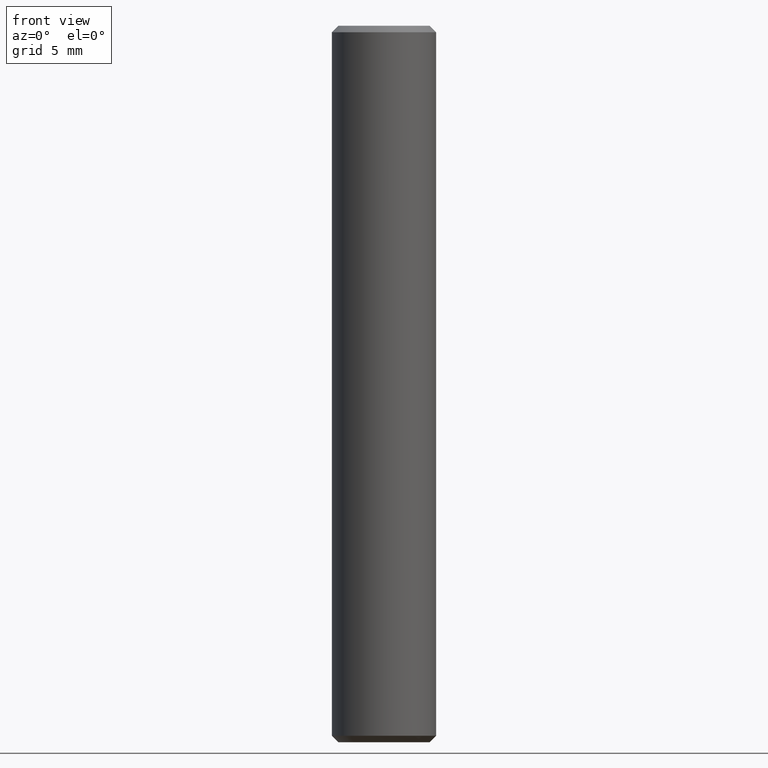
[diagram: clean part render]
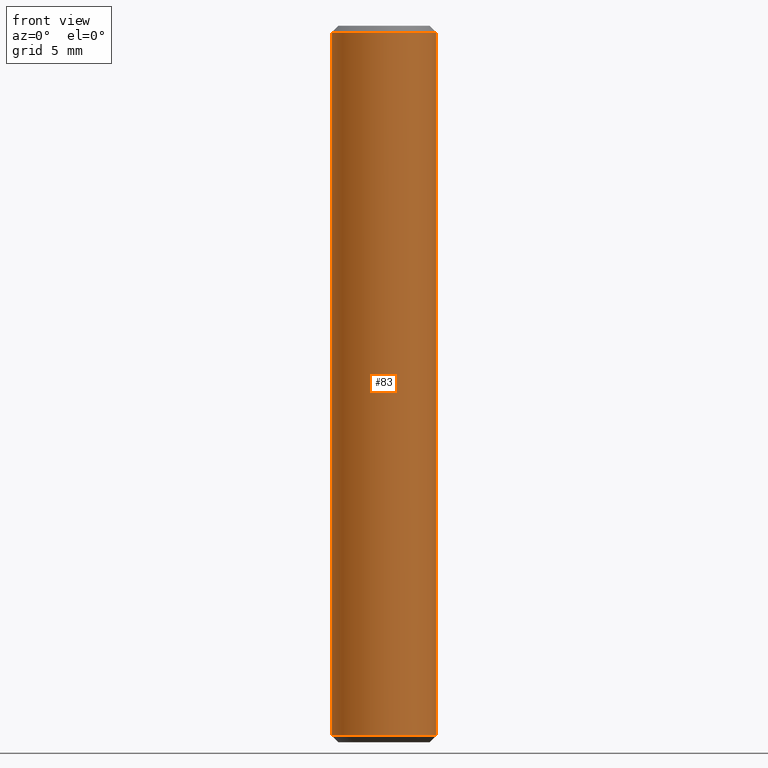
[diagram: same view with one face highlighted and labeled with its STEP entity id]
A machine part, front view. The second image highlights one B-rep face of the part: STEP entity #83.
In plain terms, the highlighted cylindrical surface (bore or boss wall) has radius 4 mm, axis along (0, 0, 1).
Its self-contained STEP definition (entity closure, byte-faithful):
#21=FACE_BOUND('',#34,.T.);
#22=CIRCLE('',#91,4.);
#23=CIRCLE('',#92,4.);
#24=CIRCLE('',#93,4.);
#25=CIRCLE('',#94,4.);
#26=CYLINDRICAL_SURFACE('',#90,4.);
#28=FACE_OUTER_BOUND('',#33,.T.);
#33=EDGE_LOOP('',(#62,#63));
#34=EDGE_LOOP('',(#64,#65));
#44=VERTEX_POINT('',#163);
#45=VERTEX_POINT('',#164);
#46=VERTEX_POINT('',#167);
#47=VERTEX_POINT('',#168);
#52=EDGE_CURVE('',#44,#45,#22,.T.);
#53=EDGE_CURVE('',#45,#44,#23,.T.);
#54=EDGE_CURVE('',#46,#47,#24,.T.);
#55=EDGE_CURVE('',#47,#46,#25,.T.);
#62=ORIENTED_EDGE('',*,*,#52,.T.);
#63=ORIENTED_EDGE('',*,*,#53,.T.);
#64=ORIENTED_EDGE('',*,*,#54,.F.);
#65=ORIENTED_EDGE('',*,*,#55,.F.);
#83=ADVANCED_FACE('',(#28,#21),#26,.T.);
#90=AXIS2_PLACEMENT_3D('',#162,#100,#101);
#91=AXIS2_PLACEMENT_3D('',#165,#102,#103);
#92=AXIS2_PLACEMENT_3D('',#166,#104,#105);
#93=AXIS2_PLACEMENT_3D('',#169,#106,#107);
#94=AXIS2_PLACEMENT_3D('',#170,#108,#109);
#100=DIRECTION('center_axis',(0.,0.,1.));
#101=DIRECTION('ref_axis',(1.,0.,0.));
#102=DIRECTION('center_axis',(0.,0.,1.));
#103=DIRECTION('ref_axis',(1.,0.,0.));
#104=DIRECTION('center_axis',(0.,0.,1.));
#105=DIRECTION('ref_axis',(1.,0.,0.));
#106=DIRECTION('center_axis',(0.,0.,1.));
#107=DIRECTION('ref_axis',(1.,0.,0.));
#108=DIRECTION('center_axis',(0.,0.,1.));
#109=DIRECTION('ref_axis',(1.,0.,0.));
#162=CARTESIAN_POINT('Origin',(0.,0.,0.));
#163=CARTESIAN_POINT('',(4.,0.,0.5));
#164=CARTESIAN_POINT('',(-4.,0.,0.5));
#165=CARTESIAN_POINT('Origin',(0.,0.,0.5));
#166=CARTESIAN_POINT('Origin',(0.,0.,0.5));
#167=CARTESIAN_POINT('',(-4.,0.,54.5));
#168=CARTESIAN_POINT('',(4.,0.,54.5));
#169=CARTESIAN_POINT('Origin',(0.,0.,54.5));
#170=CARTESIAN_POINT('Origin',(0.,0.,54.5));